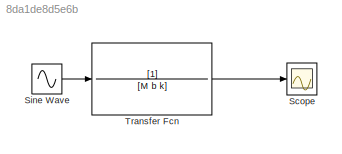
MODEL slx_8da1de8d5e6b
KIND model
BLOCK [Scope] Scope
  DataFormat = StructureWithTime
  Floating = off
  NumInputPorts = 1
  Ports = [1]
  SampleTime = 0
  ShowLegends = off
BLOCK [Sin] Sine Wave
  Ports = [0, 1]
  SampleTime = 0
BLOCK [TransferFcn] Transfer Fcn
  Denominator = [M b k]
LINE Sine Wave:1 -> Transfer Fcn:1
LINE Transfer Fcn:1 -> Scope:1
